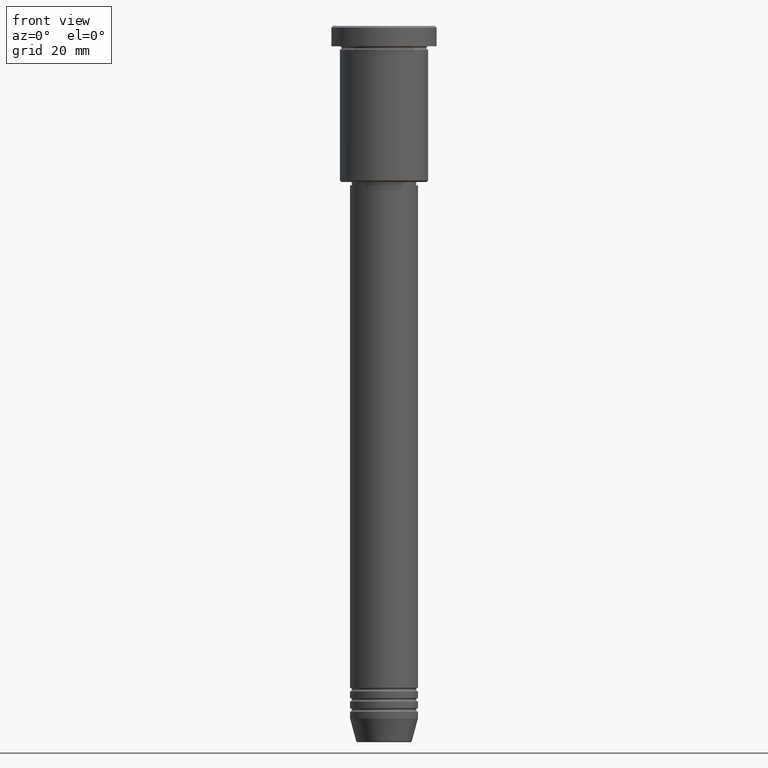
[diagram: clean part render]
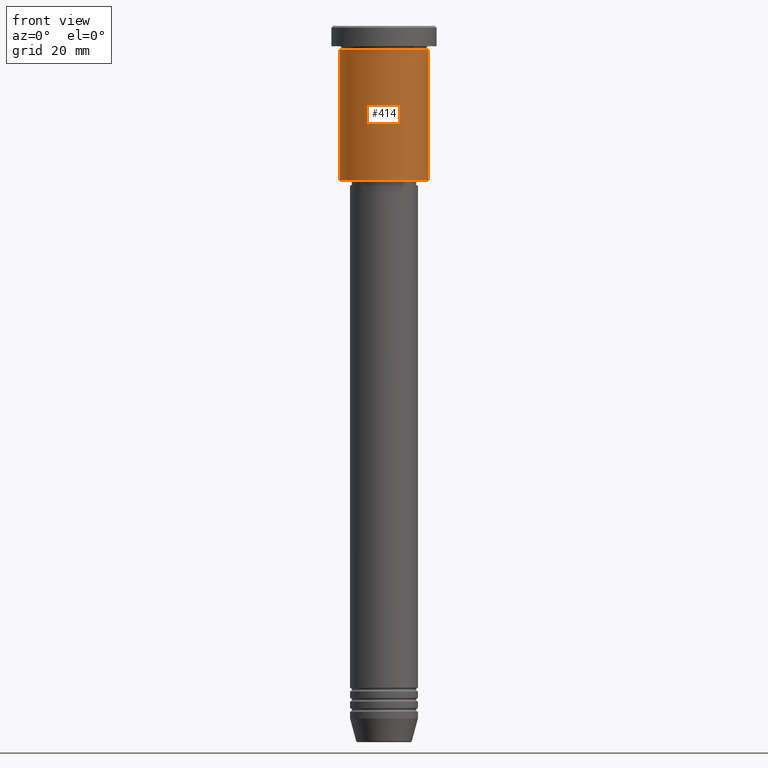
[diagram: same view with one face highlighted and labeled with its STEP entity id]
A machine part, front view. The second image highlights one B-rep face of the part: STEP entity #414.
In plain terms, the highlighted cylindrical surface (partial cylindrical patch) has radius 13 mm, axis along (-0, -0, 1).
Its self-contained STEP definition (entity closure, byte-faithful):
#22 = AXIS2_PLACEMENT_3D ( 'NONE', #1126, #29, #1122 ) ;
#28 = EDGE_CURVE ( 'NONE', #1176, #803, #793, .T. ) ;
#29 = DIRECTION ( 'NONE',  ( -0.000000000000000000, -0.000000000000000000, 1.000000000000000000 ) ) ;
#67 = EDGE_CURVE ( 'NONE', #998, #803, #715, .T. ) ;
#136 = CIRCLE ( 'NONE', #990, 13.00000000000000000 ) ;
#214 = FACE_OUTER_BOUND ( 'NONE', #539, .T. ) ;
#231 = DIRECTION ( 'NONE',  ( -0.000000000000000000, -0.000000000000000000, 1.000000000000000000 ) ) ;
#297 = CYLINDRICAL_SURFACE ( 'NONE', #22, 13.00000000000000000 ) ;
#389 = DIRECTION ( 'NONE',  ( -0.000000000000000000, -0.000000000000000000, 1.000000000000000000 ) ) ;
#414 = ADVANCED_FACE ( 'NONE', ( #214 ), #297, .T. ) ;
#420 = CARTESIAN_POINT ( 'NONE',  ( -13.00000000000000000, 1.592040838891559095E-15, -6.999999999999995559 ) ) ;
#429 = DIRECTION ( 'NONE',  ( 1.000000000000000000, 0.000000000000000000, 0.000000000000000000 ) ) ;
#465 = VECTOR ( 'NONE', #518, 1000.000000000000000 ) ;
#491 = VERTEX_POINT ( 'NONE', #1067 ) ;
#518 = DIRECTION ( 'NONE',  ( -0.000000000000000000, -0.000000000000000000, 1.000000000000000000 ) ) ;
#539 = EDGE_LOOP ( 'NONE', ( #811, #591, #794, #1167 ) ) ;
#578 = DIRECTION ( 'NONE',  ( -0.000000000000000000, -0.000000000000000000, 1.000000000000000000 ) ) ;
#591 = ORIENTED_EDGE ( 'NONE', *, *, #784, .T. ) ;
#687 = CARTESIAN_POINT ( 'NONE',  ( 13.00000000000000000, 0.000000000000000000, -6.999999999999995559 ) ) ;
#715 = CIRCLE ( 'NONE', #869, 13.00000000000000000 ) ;
#754 = DIRECTION ( 'NONE',  ( -1.000000000000000000, 0.000000000000000000, 0.000000000000000000 ) ) ;
#784 = EDGE_CURVE ( 'NONE', #491, #1176, #136, .T. ) ;
#793 = LINE ( 'NONE', #816, #465 ) ;
#794 = ORIENTED_EDGE ( 'NONE', *, *, #28, .T. ) ;
#803 = VERTEX_POINT ( 'NONE', #687 ) ;
#811 = ORIENTED_EDGE ( 'NONE', *, *, #842, .F. ) ;
#816 = CARTESIAN_POINT ( 'NONE',  ( 13.00000000000000000, 0.000000000000000000, 0.000000000000000000 ) ) ;
#842 = EDGE_CURVE ( 'NONE', #491, #998, #1114, .T. ) ;
#863 = CARTESIAN_POINT ( 'NONE',  ( 0.000000000000000000, 0.000000000000000000, -45.49999999999998579 ) ) ;
#869 = AXIS2_PLACEMENT_3D ( 'NONE', #974, #231, #429 ) ;
#926 = CARTESIAN_POINT ( 'NONE',  ( 13.00000000000000000, 0.000000000000000000, -45.49999999999998579 ) ) ;
#974 = CARTESIAN_POINT ( 'NONE',  ( 0.000000000000000000, 0.000000000000000000, -6.999999999999995559 ) ) ;
#990 = AXIS2_PLACEMENT_3D ( 'NONE', #863, #578, #754 ) ;
#998 = VERTEX_POINT ( 'NONE', #420 ) ;
#1050 = CARTESIAN_POINT ( 'NONE',  ( -13.00000000000000000, 1.592040838891559095E-15, 0.000000000000000000 ) ) ;
#1067 = CARTESIAN_POINT ( 'NONE',  ( -13.00000000000000000, 1.592040838891559095E-15, -45.49999999999998579 ) ) ;
#1083 = VECTOR ( 'NONE', #389, 1000.000000000000000 ) ;
#1114 = LINE ( 'NONE', #1050, #1083 ) ;
#1122 = DIRECTION ( 'NONE',  ( 1.000000000000000000, 0.000000000000000000, 0.000000000000000000 ) ) ;
#1126 = CARTESIAN_POINT ( 'NONE',  ( 0.000000000000000000, 0.000000000000000000, 0.000000000000000000 ) ) ;
#1167 = ORIENTED_EDGE ( 'NONE', *, *, #67, .F. ) ;
#1176 = VERTEX_POINT ( 'NONE', #926 ) ;